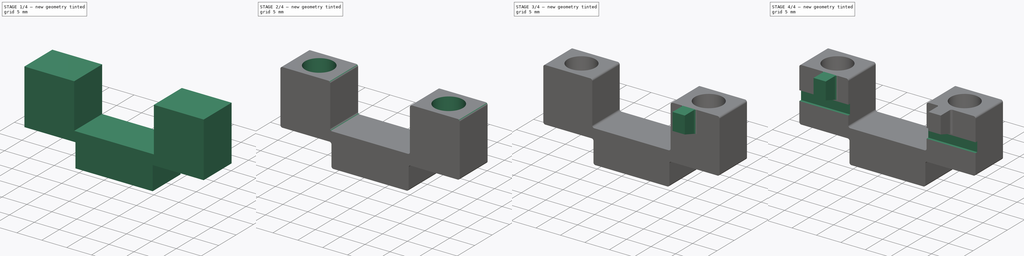
[diagram: build sequence overview — one tinted view per stage of 4, left to right]
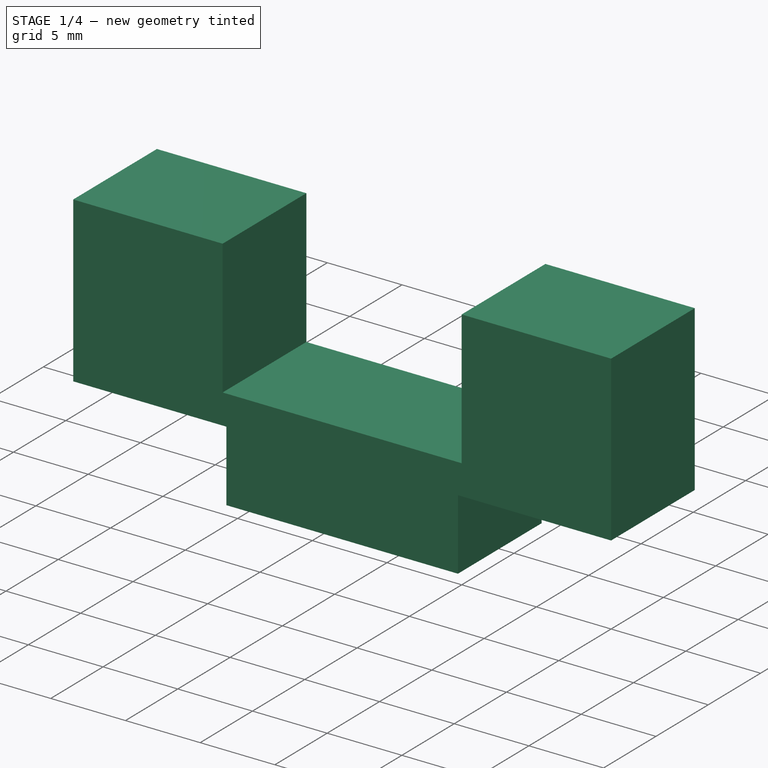
[diagram: stage 1 of 4 — iso view after this stage's code; geometry added in this stage tinted green]
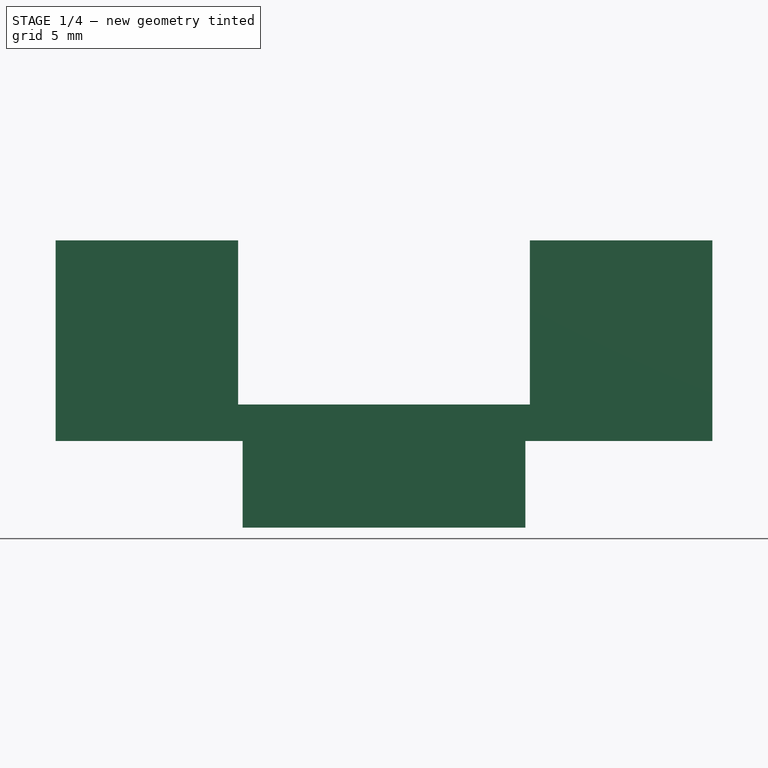
[diagram: stage 1 of 4 — front view after this stage's code; geometry added in this stage tinted green]
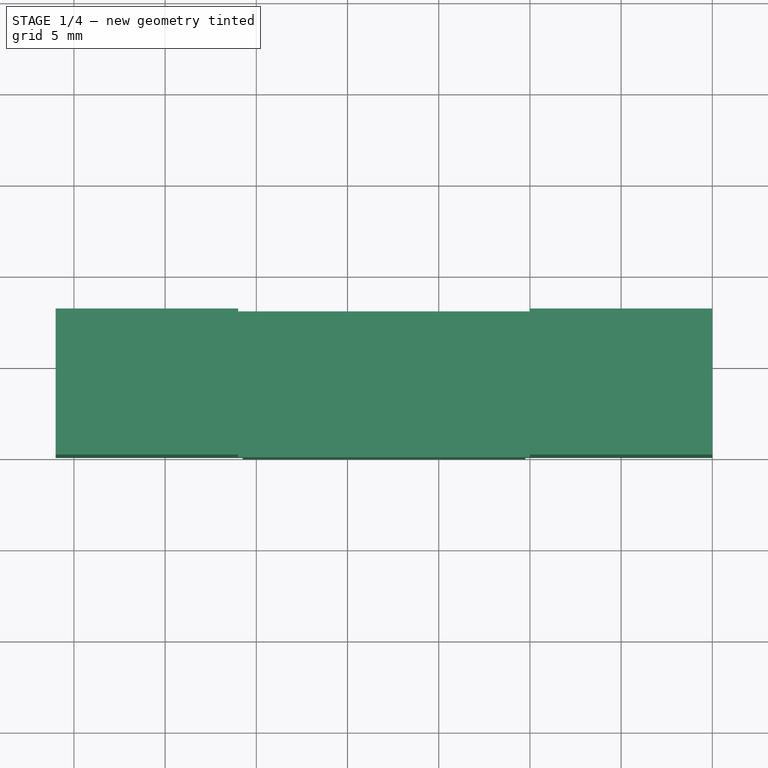
[diagram: stage 1 of 4 — top view after this stage's code; geometry added in this stage tinted green]
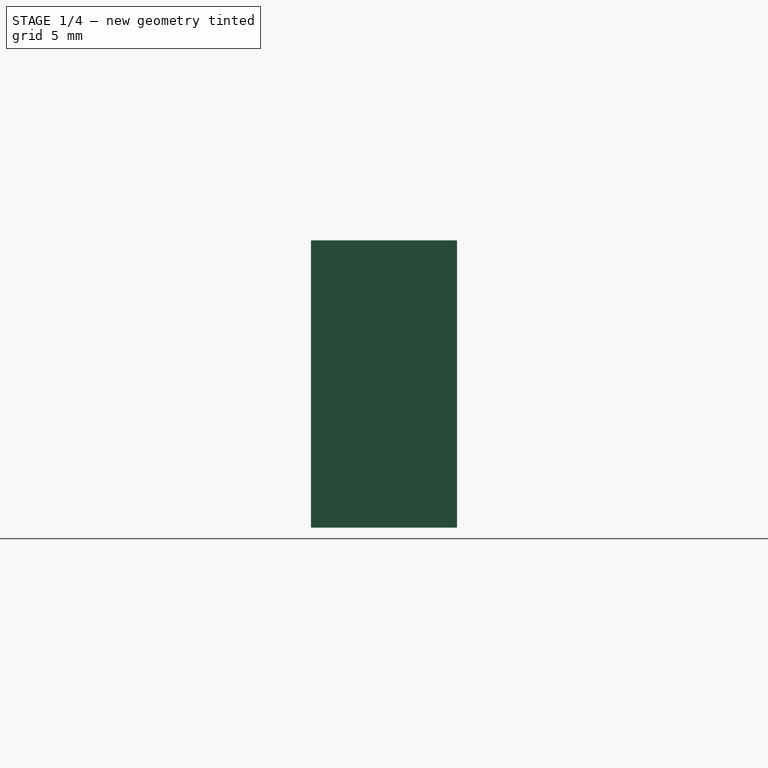
[diagram: stage 1 of 4 — right view after this stage's code; geometry added in this stage tinted green]
FCSTD DOCUMENT  (FreeCAD 0.18R4 (GitTag))
Label: cameramount_esp32_cam_counterpiece
License: CreativeCommons Attribution-NonCommercial
LicenseURL: http://creativecommons.org/licenses/by-nc/4.0/
objects: Sketcher::SketchObject×8, PartDesign::Pad×4, PartDesign::Pocket×4, PartDesign::Fillet×3, PartDesign::Body×1, App::Part×1
note: 28 computed .brp shape members not serialized (recipe doc carries the construction recipe); baked Part::Feature solids carry a one-line shape summary decoded from their .brp

FEATURE [Sketcher::SketchObject] Sketch347
  MapMode = 5
  Support = -> [XY_Plane128]
  sketch-geometry (4):
    g0: LineSegment StartX=39 StartY=8 StartZ=0 EndX=75 EndY=8 EndZ=0
    g1: LineSegment StartX=75 StartY=8 StartZ=0 EndX=75 EndY=0 EndZ=0
    g2: LineSegment StartX=75 StartY=0 StartZ=0 EndX=39 EndY=0 EndZ=0
    g3: LineSegment StartX=39 StartY=0 StartZ=0 EndX=39 EndY=8 EndZ=0
  constraints (12):
    c: Coincident(g0,g1)
    c: Coincident(g1,g2)
    c: Coincident(g2,g3)
    c: Coincident(g3,g0)
    c: Horizontal(g0)
    c: Horizontal(g2)
    c: Vertical(g1)
    c: Vertical(g3)
    c: DistanceY(g1,g1) = 8
    c: DistanceX(g0,g0) = 36
    c: DistanceX(g-1,g2) = 39
    c: DistanceY(g-1,g2) = 0
FEATURE [PartDesign::Pad] Pad130  label="Base"
  Length = 11
  Length2 = 100
  Profile = -> Sketch347
  Type = 0
FEATURE [Sketcher::SketchObject] Sketch348
  MapMode = 5
  Placement = pos=(0,0,11) rot=(0,0,1;0rad)
  Support = -> [Pad130]
  sketch-geometry (5):
    g0: LineSegment StartX=49 StartY=0 StartZ=0 EndX=65 EndY=0 EndZ=0
    g1: LineSegment StartX=65 StartY=0 StartZ=0 EndX=65 EndY=8 EndZ=0
    g2: LineSegment StartX=65 StartY=8 StartZ=0 EndX=49 EndY=8 EndZ=0
    g3: LineSegment StartX=49 StartY=8 StartZ=0 EndX=49 EndY=0 EndZ=0
    g4: GeomPoint X=57 Y=0 Z=0
  constraints (13):
    c: Coincident(g0,g1)
    c: Coincident(g1,g2)
    c: Coincident(g2,g3)
    c: Coincident(g3,g0)
    c: Horizontal(g0)
    c: Horizontal(g2)
    c: Vertical(g1)
    c: Vertical(g3)
    c: PointOnObject(g0,g-1)
    c: Symmetric(g0,g0,g4)
    c: DistanceX(g-1,g4) = 57
    c: DistanceX(g2,g2) = 16
    c: DistanceY(g1,g1) = 8
FEATURE [PartDesign::Pocket] Pocket168  label="SD-Card Space"
  BaseFeature = -> Pad130
  Length = 9
  Length2 = 100
  Profile = -> Sketch348
  Type = 0
FEATURE [Sketcher::SketchObject] Sketch350
  MapMode = 5
  Placement = pos=(0,0,0) rot=(1,0,0;3.14159rad)
  Support = -> [Pocket168]
  sketch-geometry (4):
    g0: LineSegment StartX=49.25 StartY=0 StartZ=0 EndX=64.75 EndY=0 EndZ=0
    g1: LineSegment StartX=64.75 StartY=0 StartZ=0 EndX=64.75 EndY=-8 EndZ=0
    g2: LineSegment StartX=64.75 StartY=-8 StartZ=0 EndX=49.25 EndY=-8 EndZ=0
    g3: LineSegment StartX=49.25 StartY=-8 StartZ=0 EndX=49.25 EndY=0 EndZ=0
  constraints (12):
    c: Coincident(g0,g1)
    c: Coincident(g1,g2)
    c: Coincident(g2,g3)
    c: Coincident(g3,g0)
    c: Horizontal(g0)
    c: Horizontal(g2)
    c: Vertical(g1)
    c: Vertical(g3)
    c: PointOnObject(g0,g-1)
    c: DistanceX(g0,g0) = 15.5
    c: DistanceX(g-1,g0) = 49.25
    c: DistanceY(g3,g3) = 8
FEATURE [PartDesign::Pad] Pad131  label="Alignment Block"
  BaseFeature = -> Pocket168
  Length = 4.75
  Length2 = 100
  Profile = -> Sketch350
  Type = 0
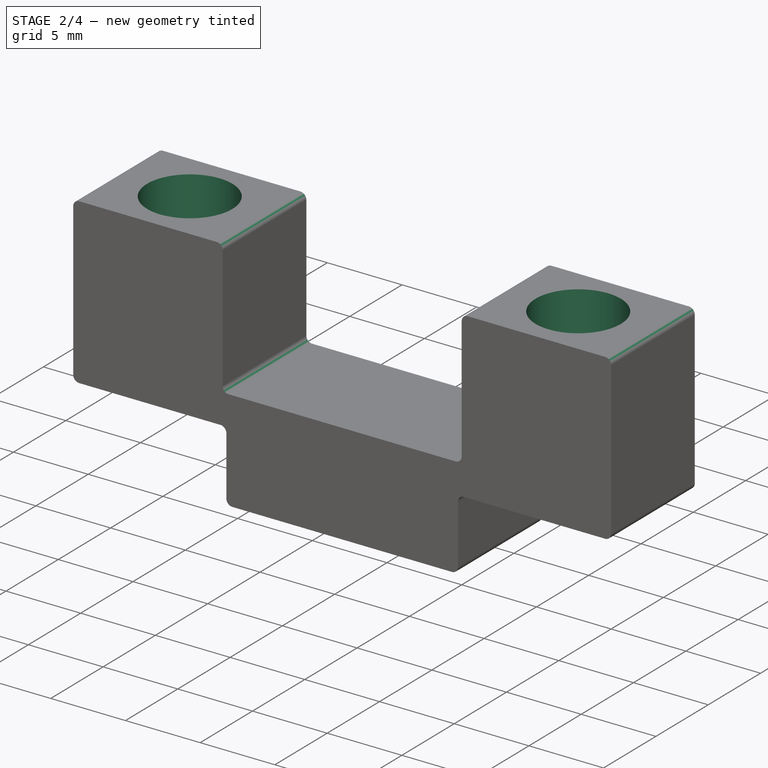
[diagram: stage 2 of 4 — iso view after this stage's code; geometry added in this stage tinted green]
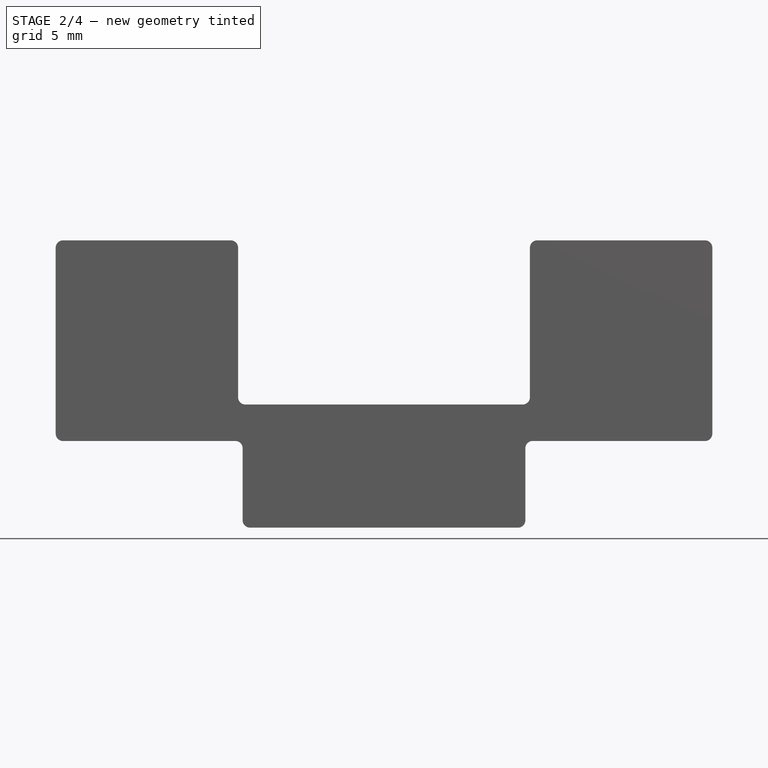
[diagram: stage 2 of 4 — front view after this stage's code; geometry added in this stage tinted green]
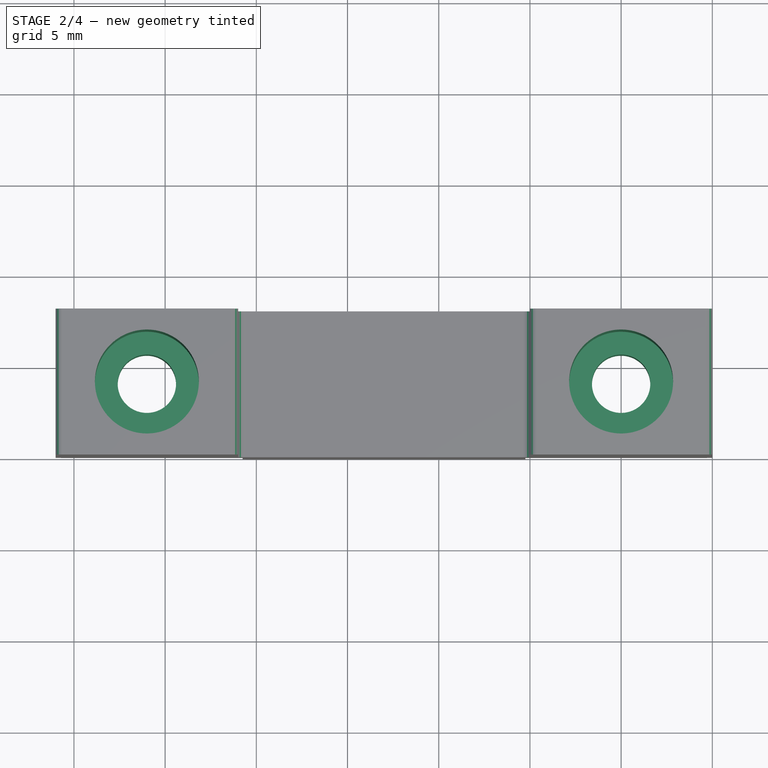
[diagram: stage 2 of 4 — top view after this stage's code; geometry added in this stage tinted green]
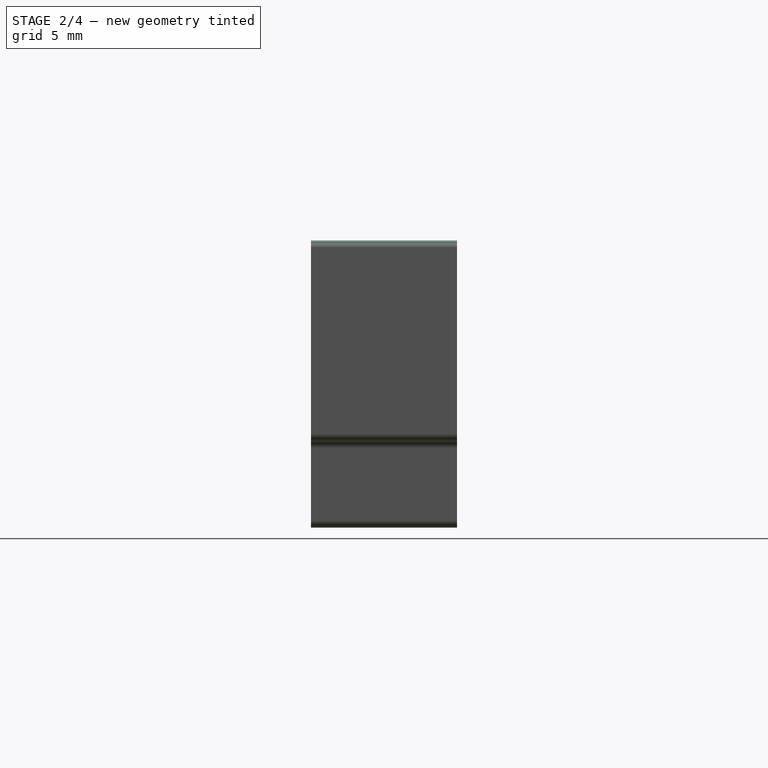
[diagram: stage 2 of 4 — right view after this stage's code; geometry added in this stage tinted green]
FEATURE [PartDesign::Fillet] Fillet  label="Smooth Corners"
  Base = -> Pad131 [Edge17,Edge19,Edge21,Edge22,Edge25,Edge27,Edge29,Edge30,Edge11,Edge13,Edge35,Edge37]
  BaseFeature = -> Pad131
  Radius = 0.4
FEATURE [Sketcher::SketchObject] Sketch351
  ExternalGeometry = -> [Fillet]
  MapMode = 5
  Placement = pos=(0,0,11) rot=(0,0,1;0rad)
  Support = -> [Fillet]
  sketch-geometry (2):
    g0: Circle CenterX=44 CenterY=4 CenterZ=0 NormalX=0 NormalY=0 NormalZ=1 AngleXU=0 Radius=1.6
    g1: Circle CenterX=70 CenterY=4 CenterZ=0 NormalX=0 NormalY=0 NormalZ=1 AngleXU=0 Radius=1.6
  constraints (6):
    c: Horizontal(g1,g0)
    c: DistanceX(g0,g1) = 26
    c: Radius(g0) = 1.6
    c: Equal(g0,g1)
    c: DistanceX(g-1,g0) = 44
    c: DistanceY(g-3,g0) = 4
FEATURE [PartDesign::Pocket] Pocket170  label="Screwholes"
  BaseFeature = -> Fillet
  Length = 11
  Length2 = 100
  Profile = -> Sketch351
  Type = 0
FEATURE [Sketcher::SketchObject] Sketch352
  ExternalGeometry = -> [Pocket170]
  MapMode = 5
  Placement = pos=(0,0,11) rot=(0,0,1;0rad)
  Support = -> [Pocket170]
  sketch-geometry (2):
    g0: Circle CenterX=44 CenterY=4 CenterZ=0 NormalX=0 NormalY=0 NormalZ=1 AngleXU=0 Radius=2.85
    g1: Circle CenterX=70 CenterY=4 CenterZ=0 NormalX=0 NormalY=0 NormalZ=1 AngleXU=0 Radius=2.85
  constraints (4):
    c: Coincident(g0,g-3)
    c: Coincident(g1,g-4)
    c: Radius(g1) = 2.85
    c: Equal(g0,g1)
FEATURE [PartDesign::Pocket] Pocket171  label="Screwheads"
  BaseFeature = -> Pocket170
  Length = 7
  Length2 = 100
  Profile = -> Sketch352
  Type = 0
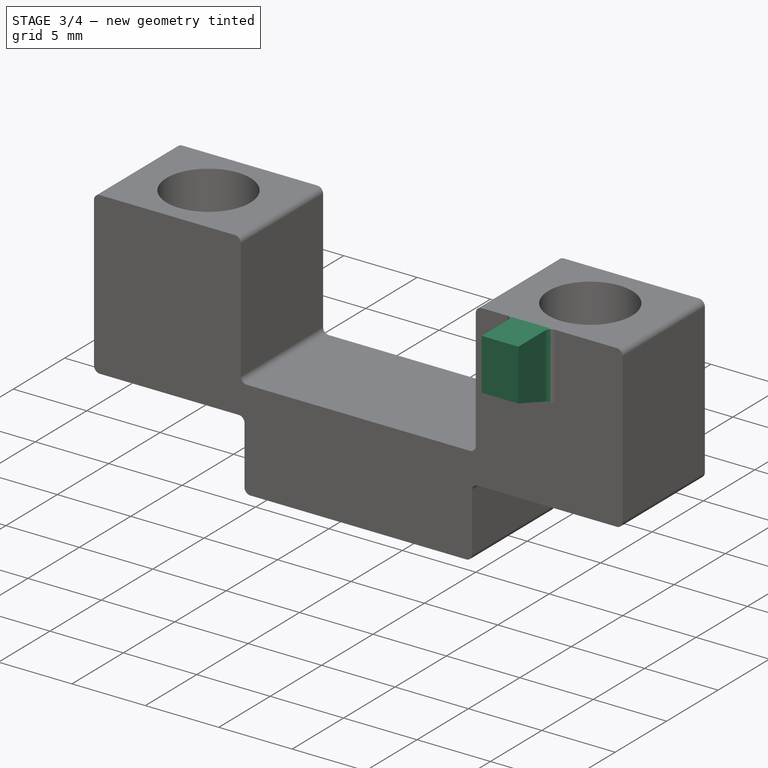
[diagram: stage 3 of 4 — iso view after this stage's code; geometry added in this stage tinted green]
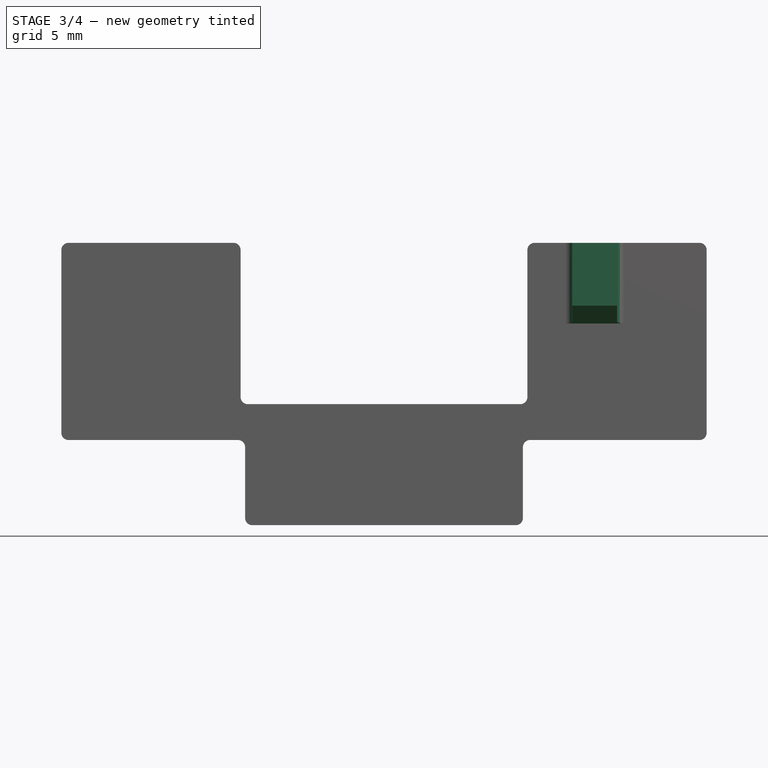
[diagram: stage 3 of 4 — front view after this stage's code; geometry added in this stage tinted green]
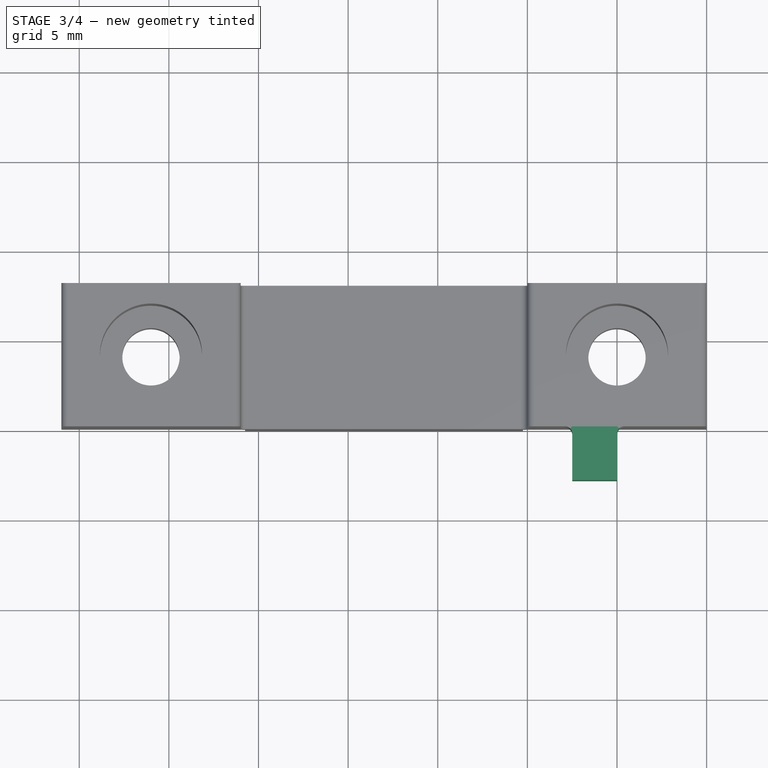
[diagram: stage 3 of 4 — top view after this stage's code; geometry added in this stage tinted green]
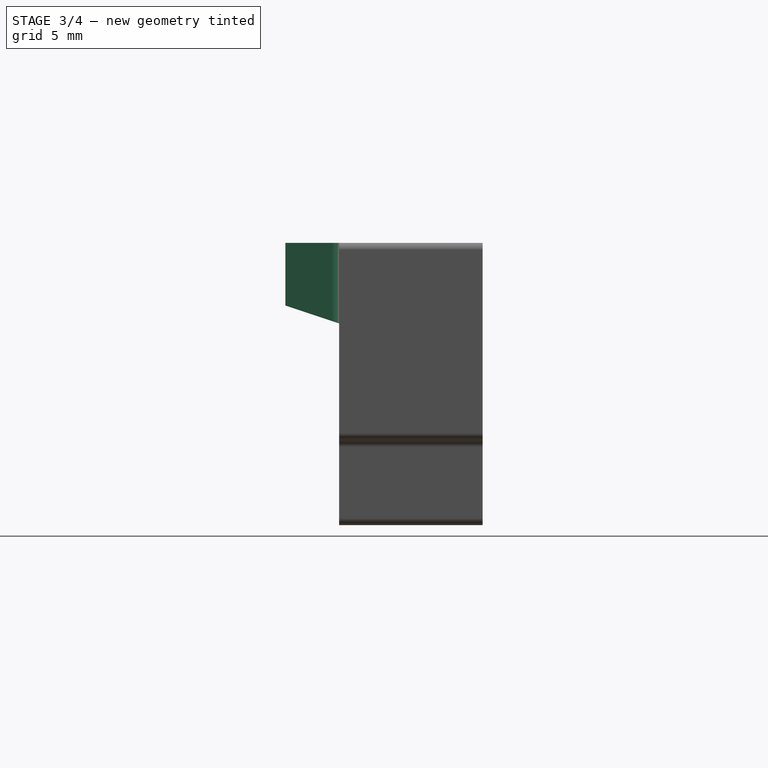
[diagram: stage 3 of 4 — right view after this stage's code; geometry added in this stage tinted green]
FEATURE [Sketcher::SketchObject] Sketch353
  AttachmentOffset = pos=(0,0,-5) rot=(0,0,1;0rad)
  MapMode = 5
  Placement = pos=(70,0,0) rot=(0.57735,0.57735,0.57735;2.0944rad)
  Support = -> [Pocket171]
  sketch-geometry (4):
    g0: LineSegment StartX=0 StartY=6.5 StartZ=0 EndX=-3 EndY=7.5 EndZ=0
    g1: LineSegment StartX=-3 StartY=7.5 StartZ=0 EndX=-3 EndY=11 EndZ=0
    g2: LineSegment StartX=-3 StartY=11 StartZ=0 EndX=0 EndY=11 EndZ=0
    g3: LineSegment StartX=0 StartY=11 StartZ=0 EndX=0 EndY=6.5 EndZ=0
  constraints (12):
    c: PointOnObject(g0,g-2)
    c: Coincident(g0,g1)
    c: Vertical(g1)
    c: Coincident(g1,g2)
    c: PointOnObject(g2,g-2)
    c: Horizontal(g2)
    c: Coincident(g2,g3)
    c: Coincident(g3,g0)
    c: DistanceY(g-1,g2) = 11
    c: DistanceY(g3,g3) = 4.5
    c: DistanceX(g2,g2) = 3
    c: DistanceY(g1,g1) = 3.5
FEATURE [PartDesign::Pad] Pad132  label="PCB-Holder #1"
  BaseFeature = -> Pocket171
  Length = 2.5
  Length2 = 100
  Profile = -> Sketch353
  Reversed = true
  Type = 0
FEATURE [PartDesign::Fillet] Fillet053  label="Smooth PCB-Holder #1"
  Base = -> Pad132 [Edge74,Edge72]
  BaseFeature = -> Pad132
  Radius = 0.4
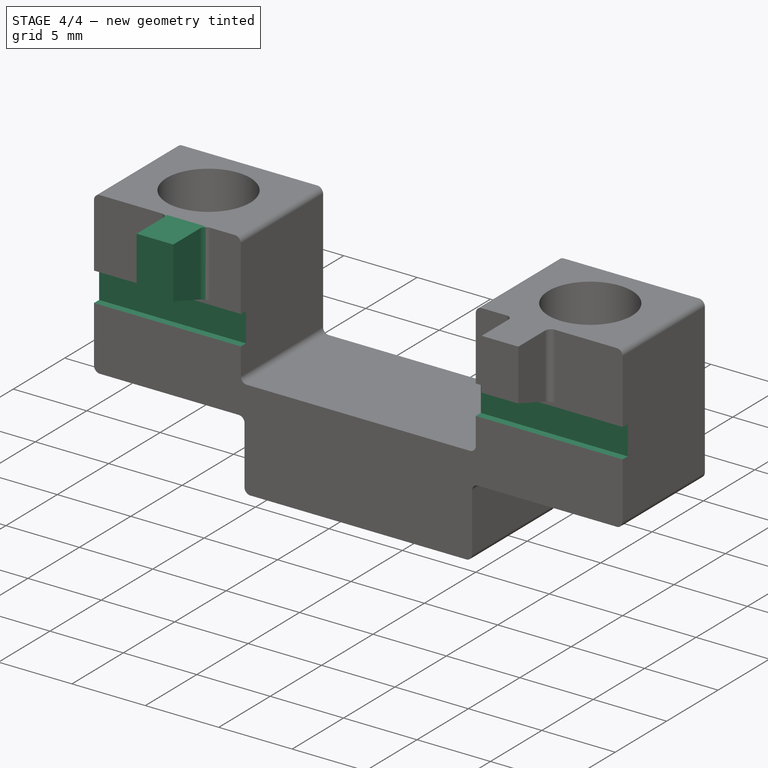
[diagram: stage 4 of 4 — iso view after this stage's code; geometry added in this stage tinted green]
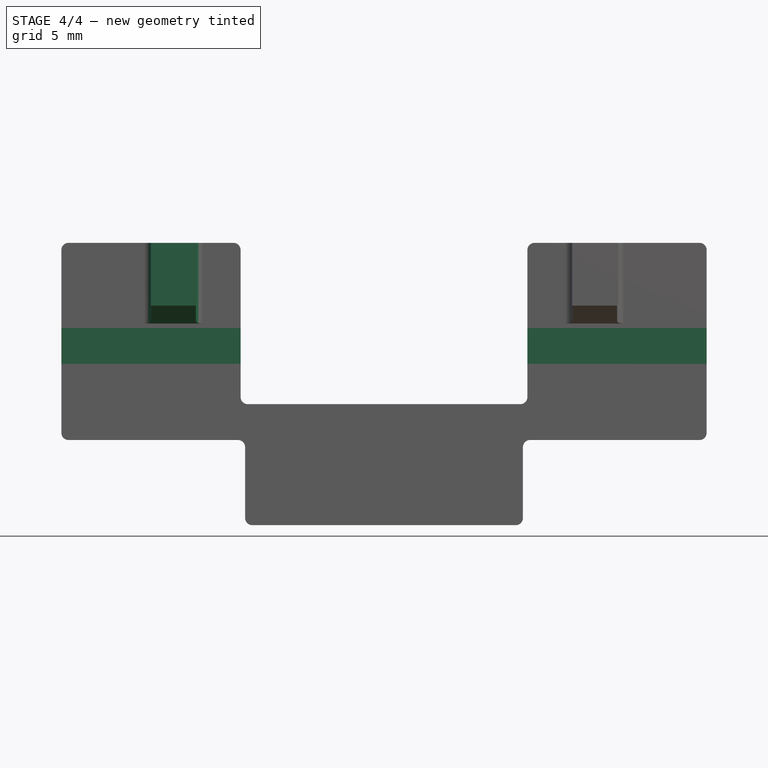
[diagram: stage 4 of 4 — front view after this stage's code; geometry added in this stage tinted green]
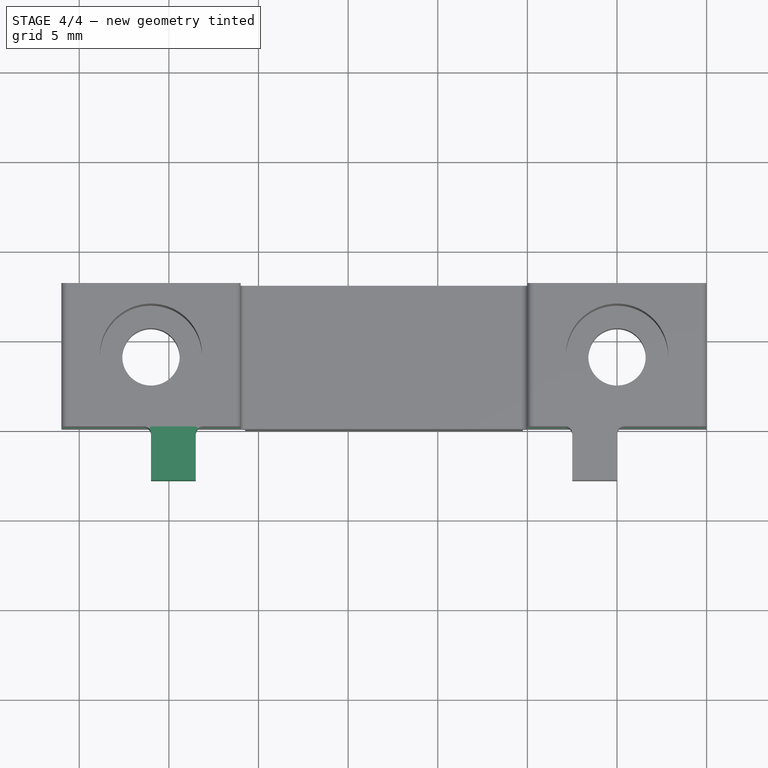
[diagram: stage 4 of 4 — top view after this stage's code; geometry added in this stage tinted green]
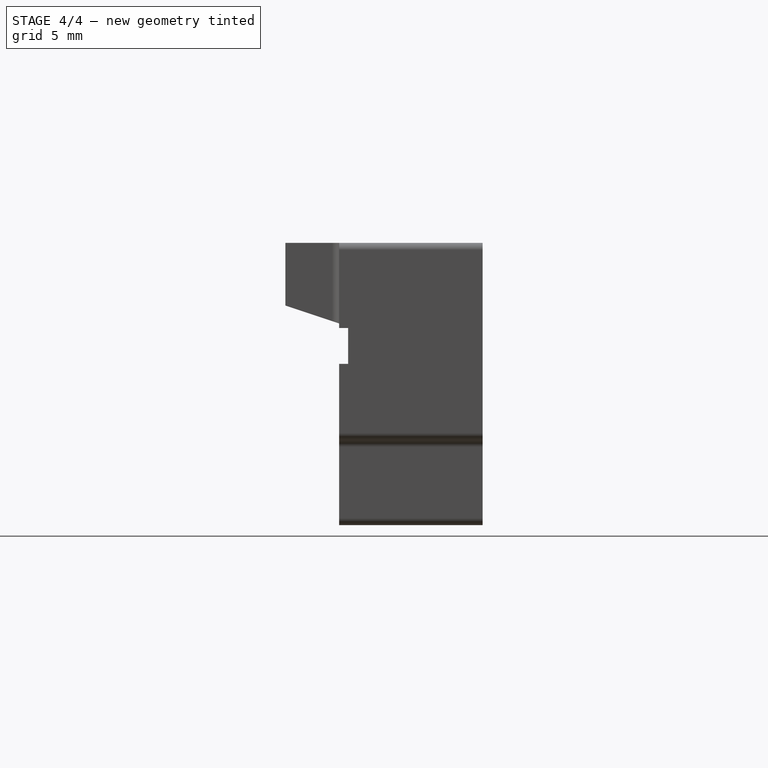
[diagram: stage 4 of 4 — right view after this stage's code; geometry added in this stage tinted green]
FEATURE [Sketcher::SketchObject] Sketch354
  AttachmentOffset = pos=(0,0,-5) rot=(0,0,1;0rad)
  MapMode = 5
  Placement = pos=(44,0,0) rot=(0.57735,-0.57735,-0.57735;2.0944rad)
  Support = -> [Fillet053]
  sketch-geometry (4):
    g0: LineSegment StartX=0 StartY=6.5 StartZ=0 EndX=3 EndY=7.5 EndZ=0
    g1: LineSegment StartX=3 StartY=7.5 StartZ=0 EndX=3 EndY=11 EndZ=0
    g2: LineSegment StartX=3 StartY=11 StartZ=0 EndX=0 EndY=11 EndZ=0
    g3: LineSegment StartX=0 StartY=11 StartZ=0 EndX=0 EndY=6.5 EndZ=0
  constraints (12):
    c: PointOnObject(g0,g-2)
    c: Coincident(g0,g1)
    c: Vertical(g1)
    c: Coincident(g1,g2)
    c: Horizontal(g2)
    c: Coincident(g2,g3)
    c: Coincident(g3,g0)
    c: Vertical(g3)
    c: DistanceY(g3,g3) = 4.5
    c: DistanceY(g1,g1) = 3.5
    c: DistanceX(g2,g2) = 3
    c: DistanceY(g-1,g2) = 11
FEATURE [PartDesign::Pad] Pad133  label="PCB-Holver #2"
  BaseFeature = -> Fillet053
  Length = 2.5
  Length2 = 100
  Profile = -> Sketch354
  Reversed = true
  Type = 0
FEATURE [PartDesign::Fillet] Fillet054  label="Smooth PCB-Holder #2"
  Base = -> Pad133 [Edge29,Edge27]
  BaseFeature = -> Pad133
  Radius = 0.4
FEATURE [Sketcher::SketchObject] Sketch
  MapMode = 5
  Placement = pos=(0,0,0) rot=(1,0,0;1.5708rad)
  Support = -> [Fillet054]
  sketch-geometry (4):
    g0: LineSegment StartX=39 StartY=6.25 StartZ=0 EndX=75 EndY=6.25 EndZ=0
    g1: LineSegment StartX=75 StartY=6.25 StartZ=0 EndX=75 EndY=4.25 EndZ=0
    g2: LineSegment StartX=75 StartY=4.25 StartZ=0 EndX=39 EndY=4.25 EndZ=0
    g3: LineSegment StartX=39 StartY=4.25 StartZ=0 EndX=39 EndY=6.25 EndZ=0
  constraints (12):
    c: Coincident(g0,g1)
    c: Coincident(g1,g2)
    c: Coincident(g2,g3)
    c: Coincident(g3,g0)
    c: Horizontal(g0)
    c: Horizontal(g2)
    c: Vertical(g1)
    c: Vertical(g3)
    c: DistanceY(g1,g1) = 2
    c: DistanceX(g0,g0) = 36
    c: DistanceY(g-1,g2) = 4.25
    c: DistanceX(g-1,g0) = 39
FEATURE [PartDesign::Pocket] Pocket  label="PCB-Tolerance"
  BaseFeature = -> Fillet054
  Length = 0.5
  Length2 = 100
  Profile = -> Sketch
  Type = 0
FEATURE [PartDesign::Body] Body  label="Camermount_ESP32_CAM_Counterpiece_Body"
  Group = -> [Sketch347,Pad130,Sketch348,Pocket168,Sketch350,Pad131,Fillet,Sketch351,Pocket170,Sketch352,Pocket171,Sketch353,Pad132,Fillet053,Sketch354,Pad133,Fillet054,Sketch,Pocket]
  Origin = -> Origin129
  Tip = -> Pocket
FEATURE [App::Part] Part  label="Cameramount_ESP32_CAM_Counterpiece"
  Group = -> [Body]
  Origin = -> Origin
  Placement = pos=(0,0,0) rot=(1,0,0;4.71239rad)
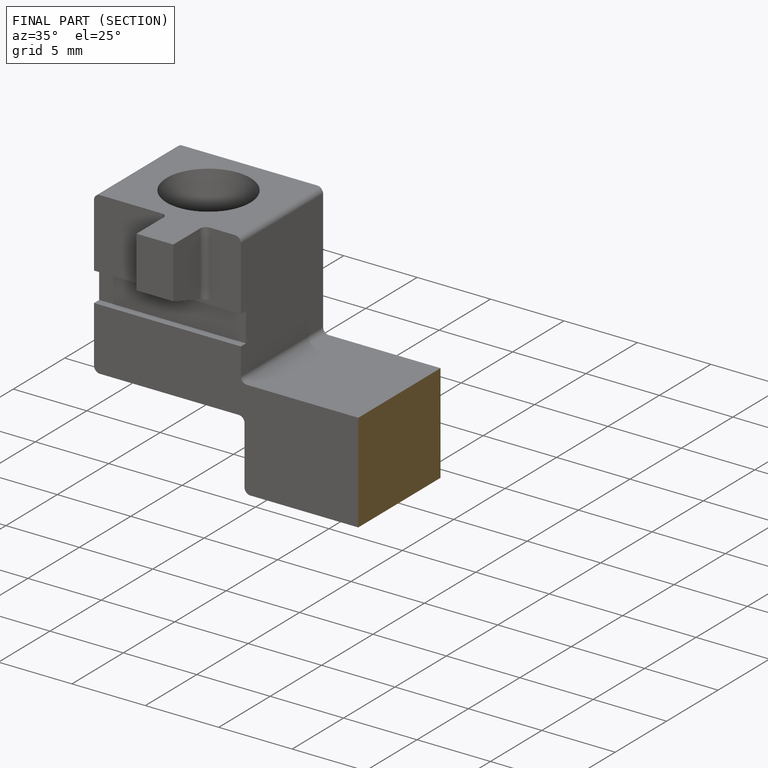
[diagram: finished part — half-section view (interior)]
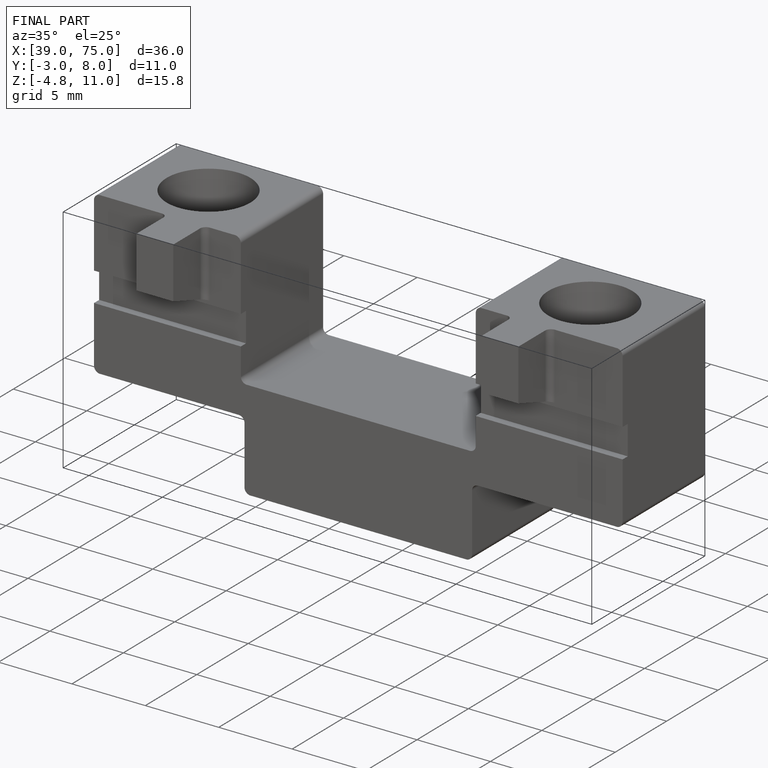
[diagram: finished part — iso view with bounding-box wireframe]
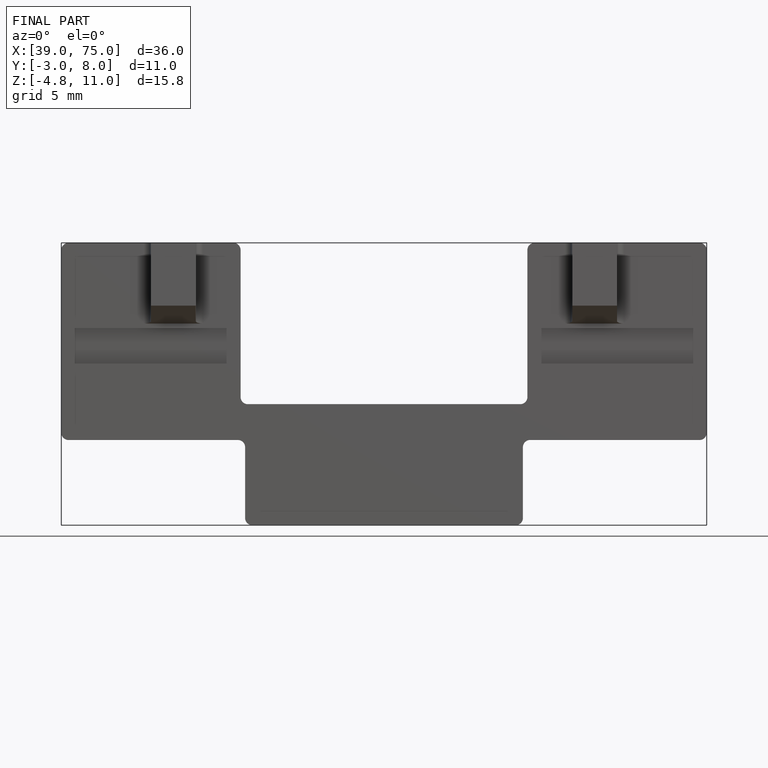
[diagram: finished part — front view with bounding-box wireframe]
